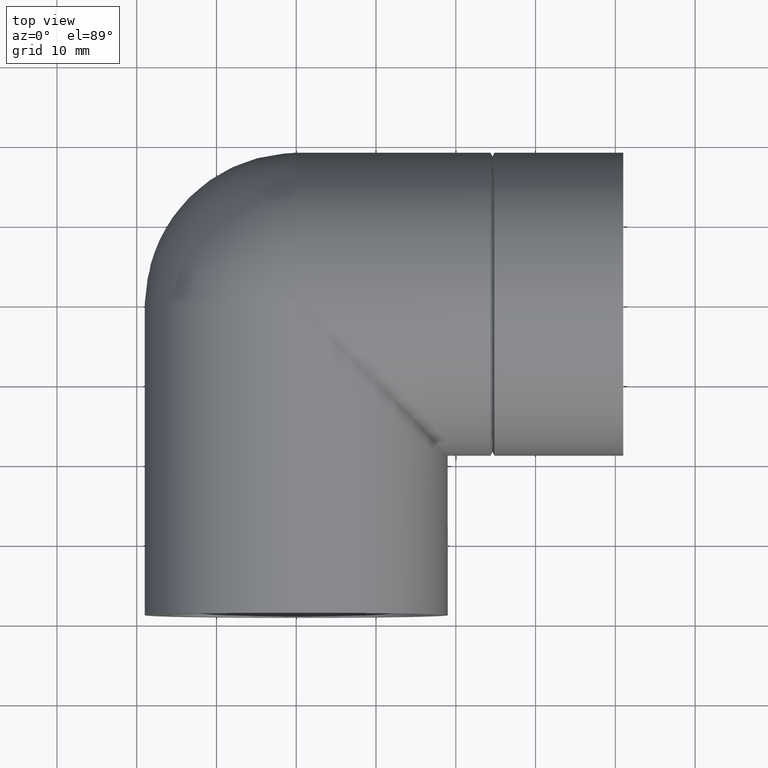
[diagram: clean part render]
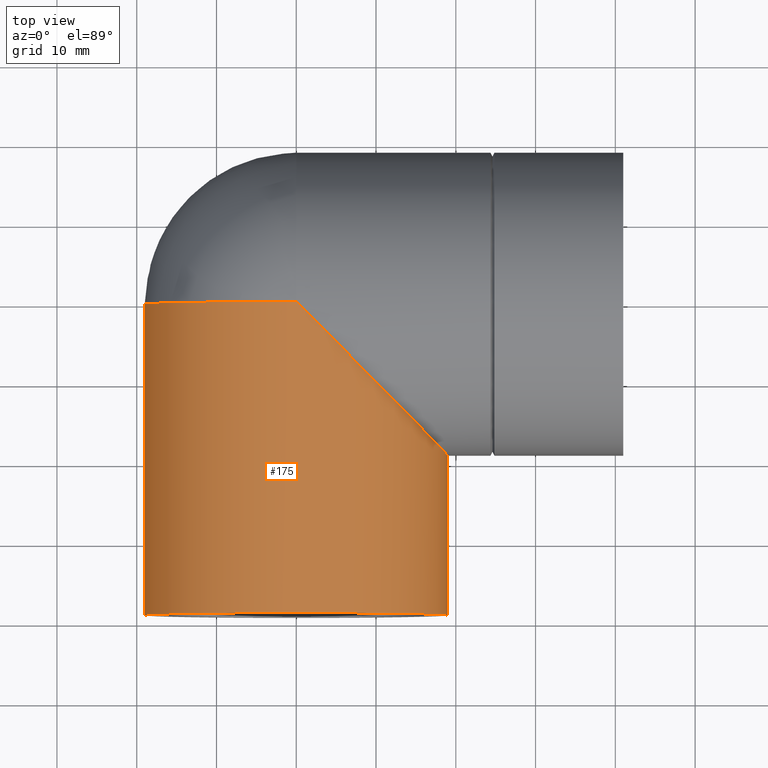
[diagram: same view with one face highlighted and labeled with its STEP entity id]
A machine part, top view. The second image highlights one B-rep face of the part: STEP entity #175.
In plain terms, the highlighted cylindrical surface (bore or boss wall) has radius 19 mm, axis along (-0, 1, 0).
Its self-contained STEP definition (entity closure, byte-faithful):
#17=ELLIPSE('',#204,26.8700576850888,19.);
#31=FACE_BOUND('',#69,.T.);
#46=FACE_OUTER_BOUND('',#68,.T.);
#68=EDGE_LOOP('',(#144));
#69=EDGE_LOOP('',(#145,#146));
#91=CIRCLE('',#201,19.);
#92=CIRCLE('',#203,19.);
#105=VERTEX_POINT('',#304);
#106=VERTEX_POINT('',#305);
#107=VERTEX_POINT('',#309);
#121=EDGE_CURVE('',#105,#106,#91,.T.);
#122=EDGE_CURVE('',#107,#107,#92,.T.);
#123=EDGE_CURVE('',#106,#105,#17,.T.);
#144=ORIENTED_EDGE('',*,*,#122,.T.);
#145=ORIENTED_EDGE('',*,*,#123,.F.);
#146=ORIENTED_EDGE('',*,*,#121,.F.);
#164=CYLINDRICAL_SURFACE('',#202,19.);
#175=ADVANCED_FACE('',(#46,#31),#164,.T.);
#201=AXIS2_PLACEMENT_3D('',#307,#251,#252);
#202=AXIS2_PLACEMENT_3D('',#308,#253,#254);
#203=AXIS2_PLACEMENT_3D('',#310,#255,#256);
#204=AXIS2_PLACEMENT_3D('',#311,#257,#258);
#251=DIRECTION('center_axis',(-1.22464679914735E-16,1.,0.));
#252=DIRECTION('ref_axis',(1.,1.22464679914735E-16,0.));
#253=DIRECTION('center_axis',(-1.22464679914735E-16,1.,0.));
#254=DIRECTION('ref_axis',(-1.,0.,0.));
#255=DIRECTION('center_axis',(-1.22464679914735E-16,1.,0.));
#256=DIRECTION('ref_axis',(1.,1.22464679914735E-16,0.));
#257=DIRECTION('center_axis',(0.707106781186548,0.707106781186548,0.));
#258=DIRECTION('ref_axis',(-0.707106781186547,0.707106781186547,0.));
#304=CARTESIAN_POINT('',(0.,-1.42477179352877E-31,-19.));
#305=CARTESIAN_POINT('',(0.,-1.42477179352877E-31,19.));
#307=CARTESIAN_POINT('Origin',(0.,0.,0.));
#308=CARTESIAN_POINT('Origin',(2.38806125833734E-15,-19.5,0.));
#309=CARTESIAN_POINT('',(-19.,-39.,0.));
#310=CARTESIAN_POINT('Origin',(4.77612251667468E-15,-39.,0.));
#311=CARTESIAN_POINT('Origin',(0.,0.,0.));